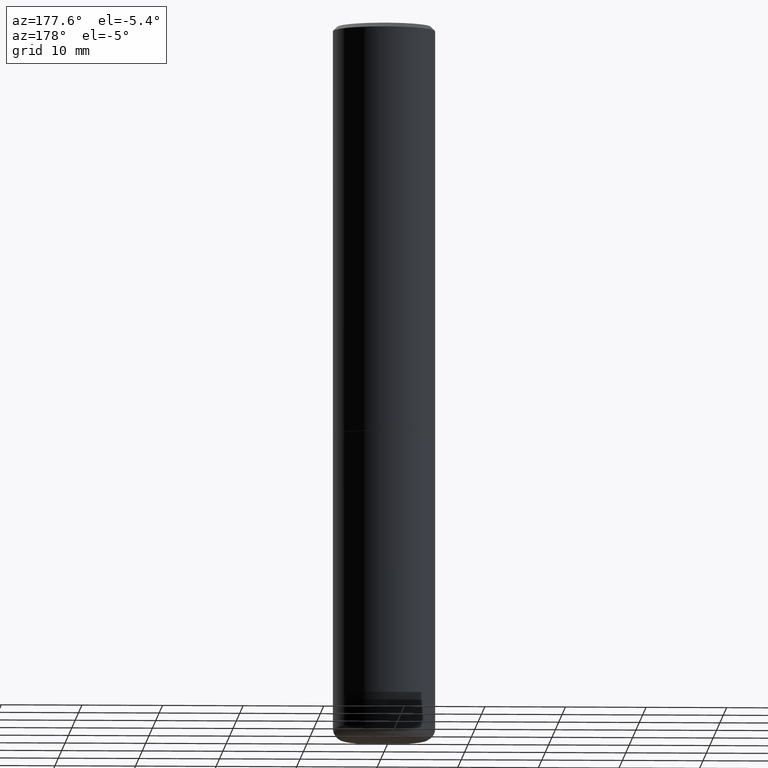
[diagram: clean part render]
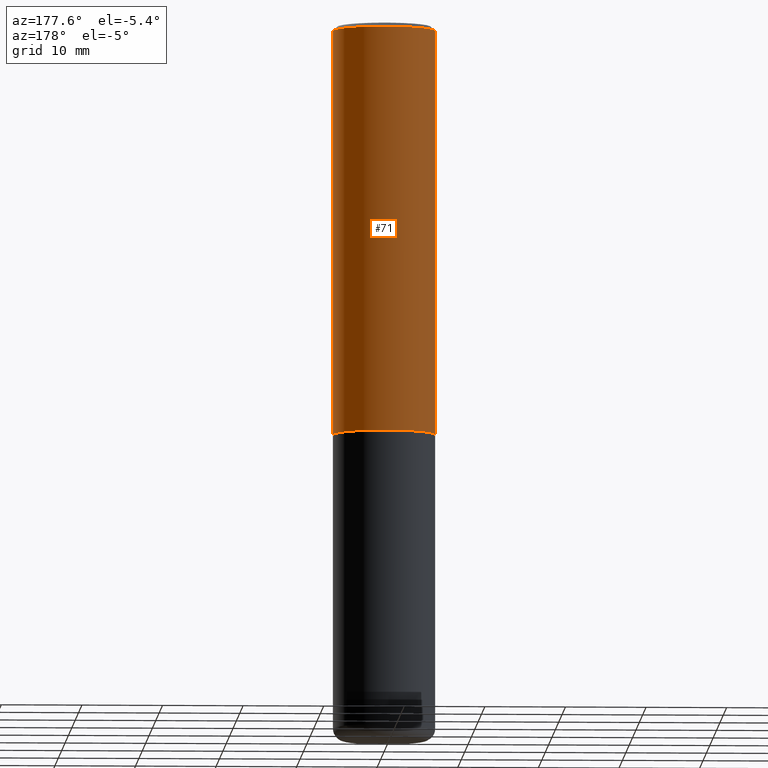
[diagram: same view with one face highlighted and labeled with its STEP entity id]
A machine part, auxiliary view. The second image highlights one B-rep face of the part: STEP entity #71.
In plain terms, the highlighted cylindrical surface (partial cylindrical patch) has radius 6.35 mm, axis along (-0, 0, 1).
Its self-contained STEP definition (entity closure, byte-faithful):
#21 = DIRECTION ( 'NONE',  ( 1.000000000000000000, -6.982962677686266711E-15, 0.000000000000000000 ) ) ;
#23 = DIRECTION ( 'NONE',  ( 1.000000000000000000, -6.982962677686267499E-15, 0.000000000000000000 ) ) ;
#38 = VERTEX_POINT ( 'NONE', #77 ) ;
#51 = LINE ( 'NONE', #246, #212 ) ;
#52 = CARTESIAN_POINT ( 'NONE',  ( 4.888492143564087591E-29, -6.979471196347447369E-15, -1.998999999999999888 ) ) ;
#56 = VERTEX_POINT ( 'NONE', #208 ) ;
#64 = ORIENTED_EDGE ( 'NONE', *, *, #403, .F. ) ;
#66 = VERTEX_POINT ( 'NONE', #162 ) ;
#71 = ADVANCED_FACE ( 'NONE', ( #171 ), #111, .T. ) ;
#74 = DIRECTION ( 'NONE',  ( -2.445468806185136877E-29, 3.491481338843145188E-15, 1.000000000000000000 ) ) ;
#75 = AXIS2_PLACEMENT_3D ( 'NONE', #52, #346, #21 ) ;
#77 = CARTESIAN_POINT ( 'NONE',  ( -0.2500000000000002776, -1.748293572161900530E-15, -1.998999999999999888 ) ) ;
#101 = AXIS2_PLACEMENT_3D ( 'NONE', #314, #375, #23 ) ;
#111 = CYLINDRICAL_SURFACE ( 'NONE', #379, 0.2500000000000001110 ) ;
#126 = CARTESIAN_POINT ( 'NONE',  ( 0.2500000000000001110, -1.745740669421567467E-15, 1.219044193948984509E-29 ) ) ;
#135 = CARTESIAN_POINT ( 'NONE',  ( 0.000000000000000000, 0.000000000000000000, 0.000000000000000000 ) ) ;
#162 = CARTESIAN_POINT ( 'NONE',  ( 0.2500000000000002776, -8.725211865769015625E-15, -1.998999999999999888 ) ) ;
#171 = FACE_OUTER_BOUND ( 'NONE', #386, .T. ) ;
#174 = DIRECTION ( 'NONE',  ( -2.445468806185136597E-29, 3.491481338843145583E-15, 1.000000000000000000 ) ) ;
#184 = CIRCLE ( 'NONE', #75, 0.2500000000000002776 ) ;
#204 = VERTEX_POINT ( 'NONE', #310 ) ;
#208 = CARTESIAN_POINT ( 'NONE',  ( 0.2499999999999999167, -1.784954126219745400E-15, -0.02000000000000005593 ) ) ;
#212 = VECTOR ( 'NONE', #282, 39.37007874015748143 ) ;
#226 = CIRCLE ( 'NONE', #101, 0.2499999999999999167 ) ;
#230 = ORIENTED_EDGE ( 'NONE', *, *, #347, .T. ) ;
#232 = DIRECTION ( 'NONE',  ( 1.000000000000000000, -6.982962677686266711E-15, 4.876176775795935793E-29 ) ) ;
#246 = CARTESIAN_POINT ( 'NONE',  ( -0.2500000000000001110, 1.776356839400251254E-15, -1.229733772563727006E-29 ) ) ;
#257 = EDGE_CURVE ( 'NONE', #56, #204, #226, .T. ) ;
#260 = VECTOR ( 'NONE', #74, 39.37007874015748143 ) ;
#265 = ORIENTED_EDGE ( 'NONE', *, *, #315, .T. ) ;
#282 = DIRECTION ( 'NONE',  ( -2.445468806185136877E-29, 3.491481338843145188E-15, 1.000000000000000000 ) ) ;
#310 = CARTESIAN_POINT ( 'NONE',  ( -0.2499999999999999167, 1.675911042644703182E-15, -0.02000000000000005593 ) ) ;
#311 = ORIENTED_EDGE ( 'NONE', *, *, #257, .F. ) ;
#314 = CARTESIAN_POINT ( 'NONE',  ( 4.890937612370287172E-31, -6.982962677686310098E-17, -0.02000000000000005593 ) ) ;
#315 = EDGE_CURVE ( 'NONE', #66, #38, #184, .T. ) ;
#334 = LINE ( 'NONE', #126, #260 ) ;
#346 = DIRECTION ( 'NONE',  ( -2.445468806185136597E-29, 3.491481338843145583E-15, 1.000000000000000000 ) ) ;
#347 = EDGE_CURVE ( 'NONE', #38, #204, #51, .T. ) ;
#375 = DIRECTION ( 'NONE',  ( -2.445468806185136597E-29, 3.491481338843145583E-15, 1.000000000000000000 ) ) ;
#379 = AXIS2_PLACEMENT_3D ( 'NONE', #135, #174, #232 ) ;
#386 = EDGE_LOOP ( 'NONE', ( #265, #230, #311, #64 ) ) ;
#403 = EDGE_CURVE ( 'NONE', #66, #56, #334, .T. ) ;